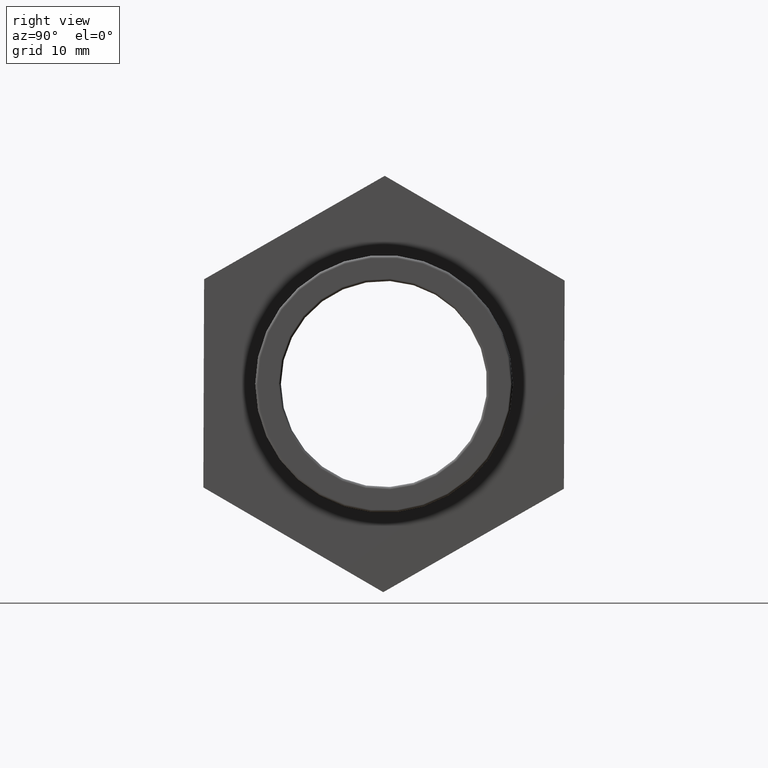
[diagram: clean part render]
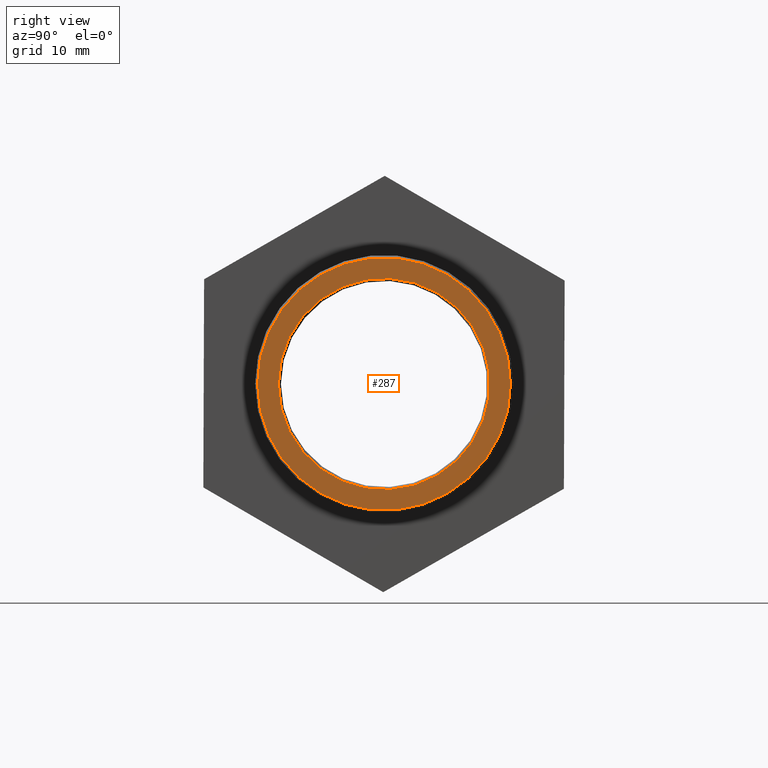
[diagram: same view with one face highlighted and labeled with its STEP entity id]
A machine part, right view. The second image highlights one B-rep face of the part: STEP entity #287.
In plain terms, the highlighted planar face has unit normal (1, 0, 0).
Its self-contained STEP definition (entity closure, byte-faithful):
#21=FACE_BOUND('',#83,.T.);
#36=CIRCLE('',#311,13.6196);
#37=CIRCLE('',#313,16.3045);
#60=FACE_OUTER_BOUND('',#82,.T.);
#82=EDGE_LOOP('',(#230));
#83=EDGE_LOOP('',(#231));
#159=VERTEX_POINT('',#468);
#160=VERTEX_POINT('',#471);
#191=EDGE_CURVE('',#159,#159,#36,.T.);
#192=EDGE_CURVE('',#160,#160,#37,.T.);
#230=ORIENTED_EDGE('',*,*,#192,.F.);
#231=ORIENTED_EDGE('',*,*,#191,.F.);
#274=PLANE('',#312);
#287=ADVANCED_FACE('',(#60,#21),#274,.T.);
#311=AXIS2_PLACEMENT_3D('',#469,#374,#375);
#312=AXIS2_PLACEMENT_3D('',#470,#376,#377);
#313=AXIS2_PLACEMENT_3D('',#472,#378,#379);
#374=DIRECTION('center_axis',(1.,6.73555739531044E-16,0.));
#375=DIRECTION('ref_axis',(-6.73555739531044E-16,1.,6.12323399573677E-17));
#376=DIRECTION('center_axis',(1.,6.73555739531044E-16,0.));
#377=DIRECTION('ref_axis',(0.,0.,-1.));
#378=DIRECTION('center_axis',(-1.,-6.73555739531044E-16,0.));
#379=DIRECTION('ref_axis',(-6.73555739531044E-16,1.,6.12323399573677E-17));
#468=CARTESIAN_POINT('',(31.,-13.6196,-2.5018799318501E-15));
#469=CARTESIAN_POINT('Origin',(31.,2.65748355414976E-14,0.));
#470=CARTESIAN_POINT('Origin',(31.,-16.6245,0.));
#471=CARTESIAN_POINT('',(31.,-16.3045,9.98362686834902E-16));
#472=CARTESIAN_POINT('Origin',(31.,2.65748355414976E-14,0.));